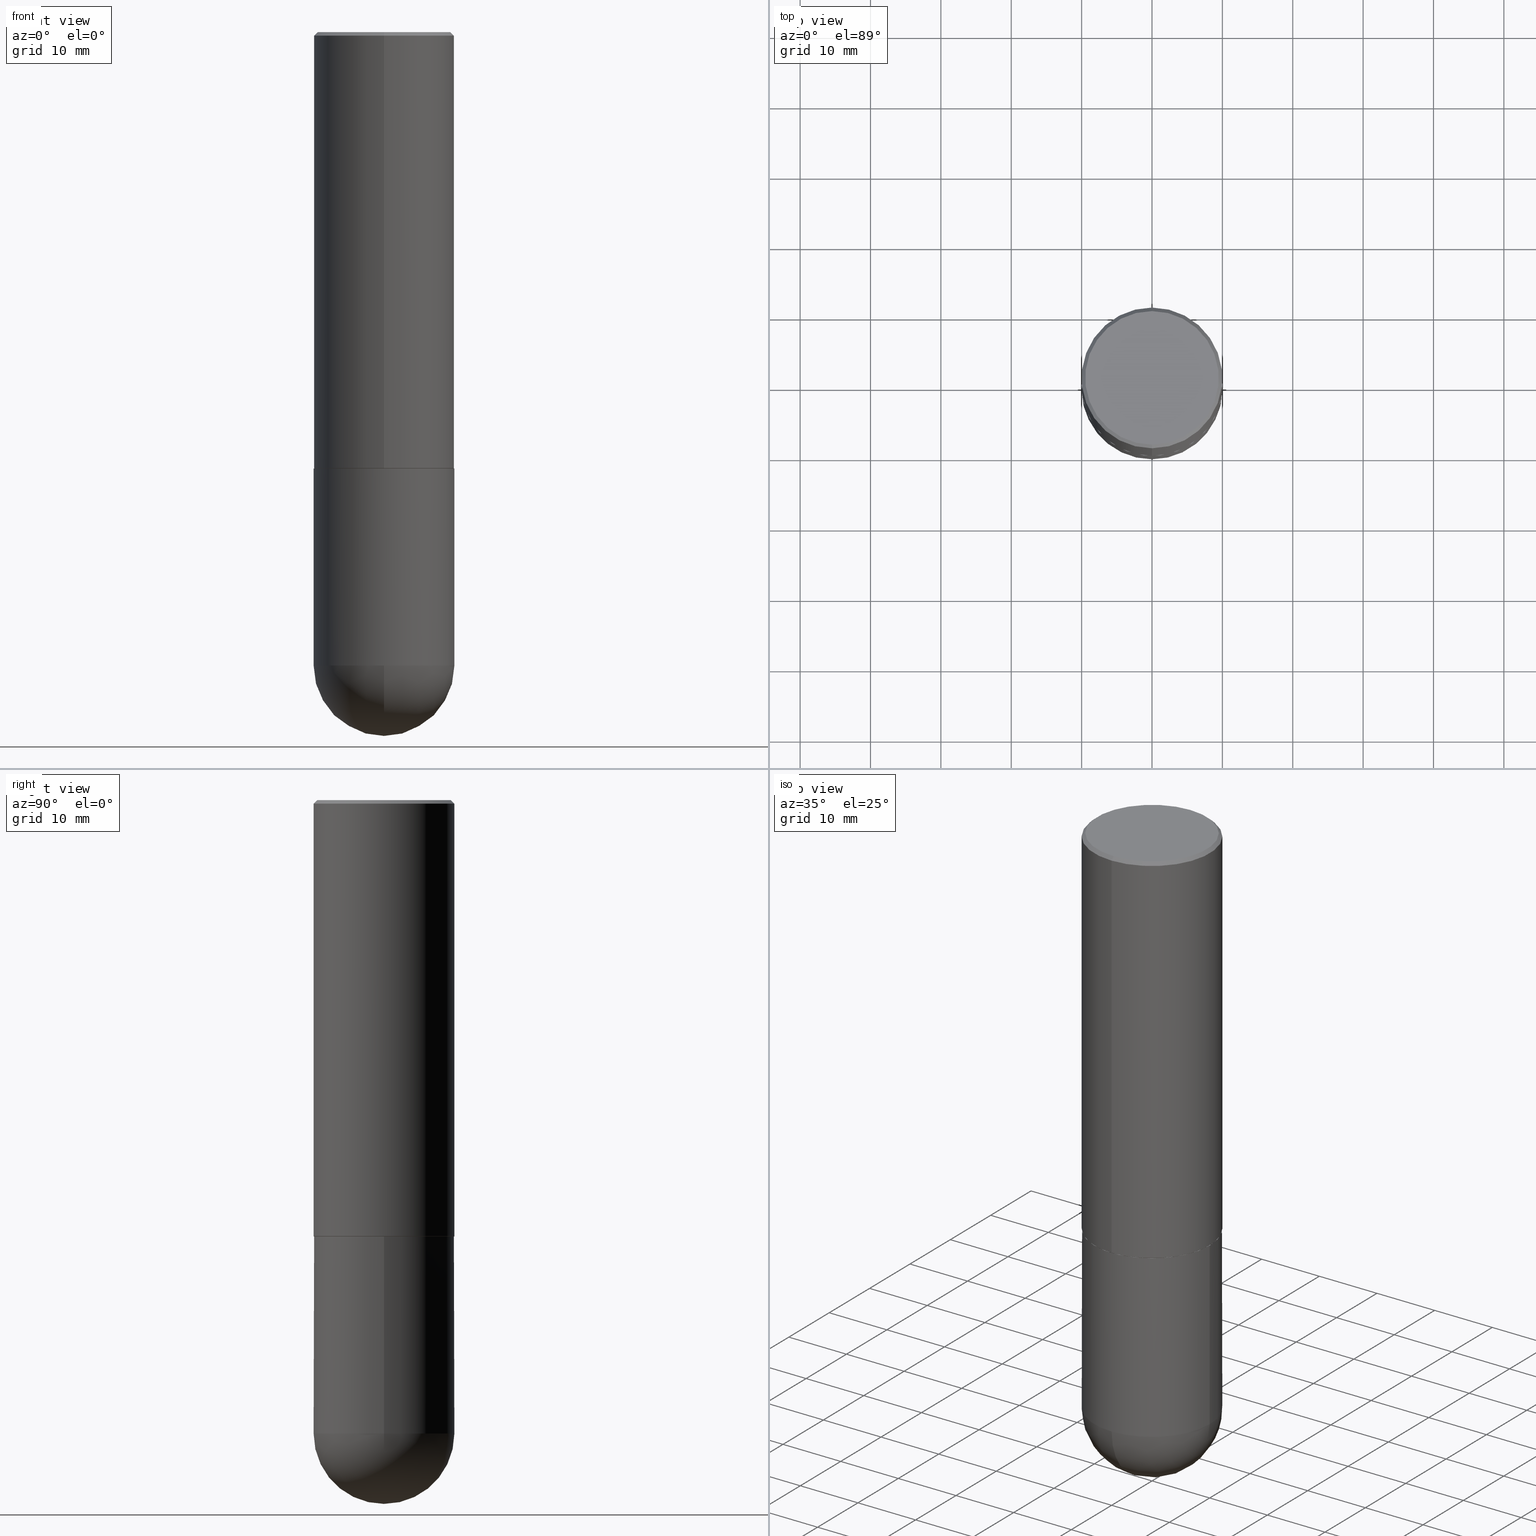
[diagram: canonical four-view strip — front | top / right | iso, engineering-drawing reading convention]
A machine part, canonical four-view strip (front | top / right | iso — engineering-drawing reading convention). The complete STEP part file that produces these views, byte-faithful:
ISO-10303-21;
HEADER;
FILE_DESCRIPTION (( 'STEP AP203' ),
    '1' );
FILE_NAME ('48882.STEP',
    '2024-04-10T12:09:17',
    ( '' ),
    ( '' ),
    'SwSTEP 2.0',
    'SolidWorks 2023',
    '' );
FILE_SCHEMA (( 'CONFIG_CONTROL_DESIGN' ));
ENDSEC;

DATA;
#1 = AXIS2_PLACEMENT_3D ( 'NONE', #129, #253, #74 ) ;
#2 = DIRECTION ( 'NONE',  ( -2.446584931093789145E-29, 3.489882984448070387E-15, 1.000000000000000000 ) ) ;
#3 = DIRECTION ( 'NONE',  ( -2.446584931093789145E-29, 3.489882984448070387E-15, 1.000000000000000000 ) ) ;
#4 = CARTESIAN_POINT ( 'NONE',  ( 5.971869158306830991E-29, -8.518455376739295534E-15, -2.440900000000000514 ) ) ;
#5 = CYLINDRICAL_SURFACE ( 'NONE', #1, 0.3937000000000001609 ) ;
#6 = FACE_OUTER_BOUND ( 'NONE', #104, .T. ) ;
#7 = VERTEX_POINT ( 'NONE', #138 ) ;
#8 = DIRECTION ( 'NONE',  ( 1.000000000000000000, -6.982962677686267499E-15, 0.000000000000000000 ) ) ;
#9 = ORIENTED_EDGE ( 'NONE', *, *, #123, .T. ) ;
#10 =( CONVERSION_BASED_UNIT ( 'INCH', #199 ) LENGTH_UNIT ( ) NAMED_UNIT ( #78 ) );
#11 = VECTOR ( 'NONE', #96, 39.37007874015748143 ) ;
#12 = DIRECTION ( 'NONE',  ( -2.446584931093789145E-29, 3.489882984448070387E-15, 1.000000000000000000 ) ) ;
#13 = ORIENTED_EDGE ( 'NONE', *, *, #152, .T. ) ;
#14 = APPROVAL ( #336, 'UNSPECIFIED' ) ;
#15 = EDGE_CURVE ( 'NONE', #232, #244, #320, .T. ) ;
#16 = FACE_OUTER_BOUND ( 'NONE', #266, .T. ) ;
#17 = PERSON_AND_ORGANIZATION ( #209, #183 ) ;
#18 = AXIS2_PLACEMENT_3D ( 'NONE', #195, #69, #173 ) ;
#19 = CALENDAR_DATE ( 2024, 10, 4 ) ;
#20 = ORIENTED_EDGE ( 'NONE', *, *, #269, .F. ) ;
#21 = EDGE_CURVE ( 'NONE', #47, #130, #242, .T. ) ;
#22 = AXIS2_PLACEMENT_3D ( 'NONE', #109, #197, #234 ) ;
#23 = LOCAL_TIME ( 8, 9, 17.00000000000000000, #265 ) ;
#24 = EDGE_LOOP ( 'NONE', ( #149, #228, #79, #395 ) ) ;
#25 = CARTESIAN_POINT ( 'NONE',  ( -0.3937000000000000499, -7.649454563265061811E-15, -2.440900000000000070 ) ) ;
#26 = CARTESIAN_POINT ( 'NONE',  ( -2.749192406205025235E-15, -0.3937000000000088207, -2.439899999999998847 ) ) ;
#27 = AXIS2_PLACEMENT_3D ( 'NONE', #91, #309, #313 ) ;
#28 = LINE ( 'NONE', #158, #412 ) ;
#29 = LOCAL_TIME ( 8, 9, 17.00000000000000000, #102 ) ;
#30 = EDGE_LOOP ( 'NONE', ( #288, #400 ) ) ;
#31 = DIRECTION ( 'NONE',  ( -2.446584931093789145E-29, 3.489882984448070387E-15, 1.000000000000000000 ) ) ;
#32 = LINE ( 'NONE', #375, #121 ) ;
#33 = DIRECTION ( 'NONE',  ( -2.446584931093789145E-29, 3.489882984448070387E-15, 1.000000000000000000 ) ) ;
#34 = DIRECTION ( 'NONE',  ( 6.982962677686265133E-15, 1.000000000000000000, 0.000000000000000000 ) ) ;
#35 = AXIS2_PLACEMENT_3D ( 'NONE', #245, #159, #273 ) ;
#36 = CARTESIAN_POINT ( 'NONE',  ( 4.893169862187600501E-31, -6.979765968896171984E-17, -0.02000000000000009062 ) ) ;
#37 = CARTESIAN_POINT ( 'NONE',  ( 2.790301323329972943E-15, 0.3926999999999915003, -2.440900000000001846 ) ) ;
#38 = ORIENTED_EDGE ( 'NONE', *, *, #370, .T. ) ;
#39 = PERSON_AND_ORGANIZATION_ROLE ( 'design_supplier' ) ;
#40 = DIRECTION ( 'NONE',  ( -2.446584931093789145E-29, 3.489882984448070387E-15, 1.000000000000000000 ) ) ;
#41 = CARTESIAN_POINT ( 'NONE',  ( 9.313524860439493426E-29, -1.419603722692429674E-14, -3.937000000000000277 ) ) ;
#42 = DIRECTION ( 'NONE',  ( -6.982962677686265133E-15, -1.000000000000000000, 3.478288761986584267E-15 ) ) ;
#43 = ADVANCED_FACE ( 'NONE', ( #394 ), #254, .T. ) ;
#44 = VERTEX_POINT ( 'NONE', #383 ) ;
#45 = ORIENTED_EDGE ( 'NONE', *, *, #111, .F. ) ;
#46 = FACE_OUTER_BOUND ( 'NONE', #257, .T. ) ;
#47 = VERTEX_POINT ( 'NONE', #41 ) ;
#48 = PERSON_AND_ORGANIZATION ( #209, #183 ) ;
#49 = EDGE_LOOP ( 'NONE', ( #329, #45, #13, #302 ) ) ;
#50 = CIRCLE ( 'NONE', #100, 0.3937000000000001054 ) ;
#51 = CARTESIAN_POINT ( 'NONE',  ( 5.969422573375736627E-29, -8.514965493754847370E-15, -2.439900000000000180 ) ) ;
#52 = VERTEX_POINT ( 'NONE', #169 ) ;
#53 = ORIENTED_EDGE ( 'NONE', *, *, #21, .F. ) ;
#54 = DIRECTION ( 'NONE',  ( -2.445468806185136597E-29, 3.491481338843145583E-15, 1.000000000000000000 ) ) ;
#55 = DIRECTION ( 'NONE',  ( 1.000000000000000000, -6.982962677686266711E-15, 0.000000000000000000 ) ) ;
#56 = CARTESIAN_POINT ( 'NONE',  ( -2.700978061722651252E-15, -0.3937000000000001054, -0.01999999999999871672 ) ) ;
#57 = AXIS2_PLACEMENT_3D ( 'NONE', #352, #97, #34 ) ;
#58 = EDGE_CURVE ( 'NONE', #52, #202, #316, .T. ) ;
#59 = CARTESIAN_POINT ( 'NONE',  ( 5.969144809017300159E-29, -8.522356799982234543E-15, -2.440900000000000070 ) ) ;
#60 = CARTESIAN_POINT ( 'NONE',  ( -2.700978061722651252E-15, -0.3937000000000001054, -0.01999999999999871672 ) ) ;
#61 = ADVANCED_FACE ( 'NONE', ( #163 ), #112, .T. ) ;
#62 = EDGE_CURVE ( 'NONE', #44, #52, #87, .T. ) ;
#63 = EDGE_LOOP ( 'NONE', ( #398, #340, #303, #175 ) ) ;
#64 = DIRECTION ( 'NONE',  ( -2.445468806185136597E-29, 3.491481338843145583E-15, 1.000000000000000000 ) ) ;
#65 = DIRECTION ( 'NONE',  ( 6.982962677686265133E-15, 1.000000000000000000, -3.491137977679279424E-15 ) ) ;
#66 = AXIS2_PLACEMENT_3D ( 'NONE', #51, #124, #218 ) ;
#67 = ORIENTED_EDGE ( 'NONE', *, *, #144, .F. ) ;
#68 = SHAPE_DEFINITION_REPRESENTATION ( #374, #410 ) ;
#69 = DIRECTION ( 'NONE',  ( -1.000000000000000000, 7.105427357601001070E-15, -4.926315508542082329E-29 ) ) ;
#70 = VERTEX_POINT ( 'NONE', #287 ) ;
#71 = ORIENTED_EDGE ( 'NONE', *, *, #356, .T. ) ;
#72 = DIRECTION ( 'NONE',  ( -2.446584931093789145E-29, 3.489882984448070387E-15, 1.000000000000000000 ) ) ;
#73 = UNCERTAINTY_MEASURE_WITH_UNIT (LENGTH_MEASURE( 1.000000000000000082E-05 ), #10, 'distance_accuracy_value', 'NONE');
#74 = DIRECTION ( 'NONE',  ( -6.982962677686265922E-15, -1.000000000000000000, 3.489882984448070387E-15 ) ) ;
#75 = AXIS2_PLACEMENT_3D ( 'NONE', #343, #3, #221 ) ;
#76 = PRODUCT ( '48882', '48882', '', ( #399 ) ) ;
#77 = CALENDAR_DATE ( 2024, 10, 4 ) ;
#78 = DIMENSIONAL_EXPONENTS ( 1.000000000000000000, 0.000000000000000000, 0.000000000000000000, 0.000000000000000000, 0.000000000000000000, 0.000000000000000000, 0.000000000000000000 ) ;
#79 = ORIENTED_EDGE ( 'NONE', *, *, #106, .F. ) ;
#80 = PERSON_AND_ORGANIZATION ( #209, #183 ) ;
#81 = PERSON_AND_ORGANIZATION_ROLE ( 'creator' ) ;
#82 = AXIS2_PLACEMENT_3D ( 'NONE', #141, #396, #42 ) ;
#83 = ADVANCED_FACE ( 'NONE', ( #328 ), #172, .T. ) ;
#84 = ADVANCED_FACE ( 'NONE', ( #6 ), #181, .T. ) ;
#85 = ORIENTED_EDGE ( 'NONE', *, *, #349, .F. ) ;
#86 = DIRECTION ( 'NONE',  ( -6.982962677686265133E-15, -1.000000000000000000, 3.491137977679279424E-15 ) ) ;
#87 = CIRCLE ( 'NONE', #82, 0.3926999999999999935 ) ;
#88 = DIRECTION ( 'NONE',  ( 6.982962677686265922E-15, 1.000000000000000000, -4.163344669033671690E-15 ) ) ;
#89 = CARTESIAN_POINT ( 'NONE',  ( 2.797406750687545552E-15, 0.3936999999999917788, -2.439900000000001512 ) ) ;
#90 = CC_DESIGN_PERSON_AND_ORGANIZATION_ASSIGNMENT ( #17, #331, ( #267 ) ) ;
#91 = CARTESIAN_POINT ( 'NONE',  ( 5.971869158306829870E-29, -8.518455376739295534E-15, -2.440900000000000070 ) ) ;
#92 = EDGE_LOOP ( 'NONE', ( #330, #180, #38, #368 ) ) ;
#93 = AXIS2_PLACEMENT_3D ( 'NONE', #231, #174, #65 ) ;
#94 = FACE_OUTER_BOUND ( 'NONE', #30, .T. ) ;
#95 = CIRCLE ( 'NONE', #243, 0.3736999999999997546 ) ;
#96 = DIRECTION ( 'NONE',  ( -2.445468806185136877E-29, 3.491481338843145188E-15, 1.000000000000000000 ) ) ;
#97 = DIRECTION ( 'NONE',  ( 1.000000000000000000, -6.982962677686265922E-15, 4.883557194083112340E-29 ) ) ;
#98 = EDGE_LOOP ( 'NONE', ( #201, #404 ) ) ;
#99 = DIRECTION ( 'NONE',  ( 2.446584931093789145E-29, -3.489882984448070387E-15, -1.000000000000000000 ) ) ;
#100 = AXIS2_PLACEMENT_3D ( 'NONE', #241, #280, #371 ) ;
#101 = APPROVAL_PERSON_ORGANIZATION ( #268, #105, #208 ) ;
#102 = COORDINATED_UNIVERSAL_TIME_OFFSET ( 5, 0, .BEHIND. ) ;
#103 = FACE_OUTER_BOUND ( 'NONE', #49, .T. ) ;
#104 = EDGE_LOOP ( 'NONE', ( #85, #214, #116, #317 ) ) ;
#105 = APPROVAL ( #115, 'UNSPECIFIED' ) ;
#106 = EDGE_CURVE ( 'NONE', #232, #202, #210, .T. ) ;
#107 = DIRECTION ( 'NONE',  ( -6.982962677686265133E-15, -1.000000000000000000, 3.478288761986584267E-15 ) ) ;
#108 = APPROVAL_DATE_TIME ( #365, #14 ) ;
#109 = CARTESIAN_POINT ( 'NONE',  ( 0.000000000000000000, 0.000000000000000000, 0.000000000000000000 ) ) ;
#110 = ORIENTED_EDGE ( 'NONE', *, *, #58, .F. ) ;
#111 = EDGE_CURVE ( 'NONE', #132, #402, #290, .T. ) ;
#112 = CONICAL_SURFACE ( 'NONE', #93, 0.3937000000000000499, 0.7853981633974476129 ) ;
#113 = LOCAL_TIME ( 8, 9, 17.00000000000000000, #299 ) ;
#114 = APPROVAL_ROLE ( '' ) ;
#115 = APPROVAL_STATUS ( 'not_yet_approved' ) ;
#116 = ORIENTED_EDGE ( 'NONE', *, *, #300, .F. ) ;
#117 = CIRCLE ( 'NONE', #369, 0.3937000000000000499 ) ;
#118 = EDGE_CURVE ( 'NONE', #70, #244, #117, .T. ) ;
#119 = APPLICATION_CONTEXT ( 'configuration controlled 3d designs of mechanical parts and assemblies' ) ;
#120 = DIRECTION ( 'NONE',  ( -4.937700262164378437E-15, -0.7071067811865208164, 0.7071067811865739960 ) ) ;
#121 = VECTOR ( 'NONE', #281, 39.37007874015748854 ) ;
#122 = PLANE ( 'NONE',  #347 ) ;
#123 = EDGE_CURVE ( 'NONE', #52, #44, #388, .T. ) ;
#124 = DIRECTION ( 'NONE',  ( -2.446584931093789145E-29, 3.489882984448070387E-15, 1.000000000000000000 ) ) ;
#125 = CARTESIAN_POINT ( 'NONE',  ( 4.893169862187600501E-31, -6.979765968896171984E-17, -0.02000000000000009062 ) ) ;
#126 = CIRCLE ( 'NONE', #35, 0.3937000000000001054 ) ;
#127 = DIRECTION ( 'NONE',  ( -2.445468806185136597E-29, 3.491481338843145583E-15, 1.000000000000000000 ) ) ;
#128 =( GEOMETRIC_REPRESENTATION_CONTEXT ( 3 ) GLOBAL_UNCERTAINTY_ASSIGNED_CONTEXT ( ( #73 ) ) GLOBAL_UNIT_ASSIGNED_CONTEXT ( ( #10, #261, #327 ) ) REPRESENTATION_CONTEXT ( 'NONE', 'WORKASPACE' ) );
#129 = CARTESIAN_POINT ( 'NONE',  ( 0.000000000000000000, 0.000000000000000000, 0.000000000000000000 ) ) ;
#130 = VERTEX_POINT ( 'NONE', #161 ) ;
#131 = CYLINDRICAL_SURFACE ( 'NONE', #156, 0.3937000000000001054 ) ;
#132 = VERTEX_POINT ( 'NONE', #274 ) ;
#133 = PERSON_AND_ORGANIZATION ( #209, #183 ) ;
#134 = LOCAL_TIME ( 8, 9, 17.00000000000000000, #207 ) ;
#135 = ORIENTED_EDGE ( 'NONE', *, *, #144, .T. ) ;
#136 = DATE_AND_TIME ( #222, #29 ) ;
#137 = FACE_OUTER_BOUND ( 'NONE', #24, .T. ) ;
#138 = CARTESIAN_POINT ( 'NONE',  ( 0.3937000000000000499, -1.127154920618731776E-14, -2.440900000000000070 ) ) ;
#139 = ORIENTED_EDGE ( 'NONE', *, *, #279, .F. ) ;
#140 = CYLINDRICAL_SURFACE ( 'NONE', #211, 0.3937000000000001054 ) ;
#141 = CARTESIAN_POINT ( 'NONE',  ( 5.971869158306830991E-29, -8.518455376739295534E-15, -2.440900000000000514 ) ) ;
#142 = MANIFOLD_SOLID_BREP ( 'Body-Move/Copy2[1]', #282 ) ;
#143 = CALENDAR_DATE ( 2024, 10, 4 ) ;
#144 = EDGE_CURVE ( 'NONE', #202, #232, #301, .T. ) ;
#145 = VECTOR ( 'NONE', #311, 39.37007874015748854 ) ;
#146 = CC_DESIGN_SECURITY_CLASSIFICATION ( #267, ( #406 ) ) ;
#147 = DATE_AND_TIME ( #19, #134 ) ;
#148 = MANIFOLD_SOLID_BREP ( 'Body-Move/Copy2[2]', #318 ) ;
#149 = ORIENTED_EDGE ( 'NONE', *, *, #62, .T. ) ;
#150 = EDGE_CURVE ( 'NONE', #333, #291, #126, .T. ) ;
#151 = AXIS2_PLACEMENT_3D ( 'NONE', #294, #362, #323 ) ;
#152 = EDGE_CURVE ( 'NONE', #132, #70, #32, .T. ) ;
#153 = CARTESIAN_POINT ( 'NONE',  ( 8.665029620955792948E-29, -1.237136582792291707E-14, -3.543299999999999450 ) ) ;
#154 = LINE ( 'NONE', #56, #145 ) ;
#155 = AXIS2_PLACEMENT_3D ( 'NONE', #217, #215, #186 ) ;
#156 = AXIS2_PLACEMENT_3D ( 'NONE', #382, #286, #319 ) ;
#157 = CIRCLE ( 'NONE', #220, 0.3937000000000000499 ) ;
#158 = CARTESIAN_POINT ( 'NONE',  ( -0.3937000000000001054, 2.797406750687515181E-15, -1.936584745033357016E-29 ) ) ;
#159 = DIRECTION ( 'NONE',  ( -2.445468806185136597E-29, 3.491481338843145583E-15, 1.000000000000000000 ) ) ;
#160 = ADVANCED_FACE ( 'NONE', ( #377 ), #411, .F. ) ;
#161 = CARTESIAN_POINT ( 'NONE',  ( 2.749192406205169202E-15, 0.3936999999999876709, -3.543300000000000782 ) ) ;
#162 = PLANE ( 'NONE',  #390 ) ;
#163 = FACE_OUTER_BOUND ( 'NONE', #92, .T. ) ;
#164 = ORIENTED_EDGE ( 'NONE', *, *, #191, .F. ) ;
#165 = FACE_OUTER_BOUND ( 'NONE', #353, .T. ) ;
#166 = ORIENTED_EDGE ( 'NONE', *, *, #279, .T. ) ;
#167 = ORIENTED_EDGE ( 'NONE', *, *, #334, .T. ) ;
#168 =( LENGTH_UNIT ( ) NAMED_UNIT ( * ) SI_UNIT ( $, .METRE. ) );
#169 = CARTESIAN_POINT ( 'NONE',  ( 2.793854037008774630E-15, 0.3926999999999915003, -2.440900000000001846 ) ) ;
#170 = FACE_OUTER_BOUND ( 'NONE', #240, .T. ) ;
#171 = CONICAL_SURFACE ( 'NONE', #355, 0.3926999999999999935, 0.7853981633974141952 ) ;
#172 = CYLINDRICAL_SURFACE ( 'NONE', #22, 0.3937000000000001609 ) ;
#173 = DIRECTION ( 'NONE',  ( -7.105427357600999492E-15, -1.000000000000000000, 0.000000000000000000 ) ) ;
#174 = DIRECTION ( 'NONE',  ( 2.446584931093789145E-29, -3.489882984448070387E-15, -1.000000000000000000 ) ) ;
#175 = ORIENTED_EDGE ( 'NONE', *, *, #15, .F. ) ;
#176 = CARTESIAN_POINT ( 'NONE',  ( 0.000000000000000000, 0.000000000000000000, 0.000000000000000000 ) ) ;
#177 = APPLICATION_PROTOCOL_DEFINITION ( 'international standard', 'config_control_design', 1994, #403 ) ;
#178 = ORIENTED_EDGE ( 'NONE', *, *, #272, .T. ) ;
#179 = AXIS2_PLACEMENT_3D ( 'NONE', #176, #335, #297 ) ;
#180 = ORIENTED_EDGE ( 'NONE', *, *, #247, .T. ) ;
#181 = SPHERICAL_SURFACE ( 'NONE', #249, 0.3937000000000003830 ) ;
#182 = ORIENTED_EDGE ( 'NONE', *, *, #272, .F. ) ;
#183 = ORGANIZATION ( 'UNSPECIFIED', 'UNSPECIFIED', '' ) ;
#184 = DIRECTION ( 'NONE',  ( 1.000000000000000000, -6.982962677686267499E-15, 0.000000000000000000 ) ) ;
#185 = CC_DESIGN_PERSON_AND_ORGANIZATION_ASSIGNMENT ( #133, #39, ( #406 ) ) ;
#186 = DIRECTION ( 'NONE',  ( -6.982962677686265922E-15, -1.000000000000000000, 3.469453890861393601E-15 ) ) ;
#187 = DIRECTION ( 'NONE',  ( 2.446584931093788865E-29, -3.489882984448070387E-15, -1.000000000000000000 ) ) ;
#188 = CIRCLE ( 'NONE', #194, 0.3937000000000000499 ) ;
#189 = LOCAL_TIME ( 8, 9, 17.00000000000000000, #325 ) ;
#190 = LINE ( 'NONE', #192, #239 ) ;
#191 = EDGE_CURVE ( 'NONE', #130, #275, #342, .T. ) ;
#192 = CARTESIAN_POINT ( 'NONE',  ( 2.797406750687515181E-15, 0.3937000000000001609, -1.373966930977205864E-15 ) ) ;
#193 = CARTESIAN_POINT ( 'NONE',  ( 4.893169862187600501E-31, -6.979765968896171984E-17, -0.02000000000000009062 ) ) ;
#194 = AXIS2_PLACEMENT_3D ( 'NONE', #59, #409, #184 ) ;
#195 = CARTESIAN_POINT ( 'NONE',  ( 8.333909843041907822E-29, -1.284554819606296579E-14, -3.543299999999999894 ) ) ;
#196 = CIRCLE ( 'NONE', #250, 0.3937000000000000499 ) ;
#197 = DIRECTION ( 'NONE',  ( -2.446584931093789145E-29, 3.489882984448070387E-15, 1.000000000000000000 ) ) ;
#198 = ORIENTED_EDGE ( 'NONE', *, *, #349, .T. ) ;
#199 = LENGTH_MEASURE_WITH_UNIT ( LENGTH_MEASURE( 0.02539999999999999897 ), #168 );
#200 = DATE_AND_TIME ( #143, #189 ) ;
#201 = ORIENTED_EDGE ( 'NONE', *, *, #62, .F. ) ;
#202 = VERTEX_POINT ( 'NONE', #89 ) ;
#203 = ADVANCED_FACE ( 'NONE', ( #94 ), #122, .F. ) ;
#204 = DIRECTION ( 'NONE',  ( -6.982962677686265133E-15, -1.000000000000000000, 3.478288761986584267E-15 ) ) ;
#205 = SECURITY_CLASSIFICATION_LEVEL ( 'unclassified' ) ;
#206 = DATE_AND_TIME ( #77, #23 ) ;
#207 = COORDINATED_UNIVERSAL_TIME_OFFSET ( 5, 0, .BEHIND. ) ;
#208 = APPROVAL_ROLE ( '' ) ;
#209 = PERSON ( 'UNSPECIFIED', 'UNSPECIFIED', 'UNSPECIFIED', ('UNSPECIFIED'), ('UNSPECIFIED'), ('UNSPECIFIED') ) ;
#210 = CIRCLE ( 'NONE', #66, 0.3937000000000002720 ) ;
#211 = AXIS2_PLACEMENT_3D ( 'NONE', #351, #64, #381 ) ;
#212 = PRODUCT_RELATED_PRODUCT_CATEGORY ( 'detail', '', ( #76 ) ) ;
#213 = ORIENTED_EDGE ( 'NONE', *, *, #356, .F. ) ;
#214 = ORIENTED_EDGE ( 'NONE', *, *, #21, .T. ) ;
#215 = DIRECTION ( 'NONE',  ( -2.446584931093789145E-29, 3.489882984448070387E-15, 1.000000000000000000 ) ) ;
#216 = AXIS2_PLACEMENT_3D ( 'NONE', #4, #345, #246 ) ;
#217 = CARTESIAN_POINT ( 'NONE',  ( 5.969422573375736627E-29, -8.514965493754847370E-15, -2.439900000000000180 ) ) ;
#218 = DIRECTION ( 'NONE',  ( -6.982962677686265922E-15, -1.000000000000000000, 3.469453890861393601E-15 ) ) ;
#219 = DIRECTION ( 'NONE',  ( 1.000000000000000000, -6.982962677686266711E-15, 0.000000000000000000 ) ) ;
#220 = AXIS2_PLACEMENT_3D ( 'NONE', #193, #33, #315 ) ;
#221 = DIRECTION ( 'NONE',  ( -6.982962677686265922E-15, -1.000000000000000000, 3.489882984448069993E-15 ) ) ;
#222 = CALENDAR_DATE ( 2024, 10, 4 ) ;
#223 = DIRECTION ( 'NONE',  ( -1.000000000000000000, 6.982962677686265922E-15, -4.876176775795935793E-29 ) ) ;
#224 = APPROVAL_STATUS ( 'not_yet_approved' ) ;
#225 = VECTOR ( 'NONE', #120, 39.37007874015748854 ) ;
#226 = FACE_OUTER_BOUND ( 'NONE', #321, .T. ) ;
#227 = CARTESIAN_POINT ( 'NONE',  ( -2.749192406205084005E-15, -0.3937000000000001609, 1.373966930977205864E-15 ) ) ;
#228 = ORIENTED_EDGE ( 'NONE', *, *, #58, .T. ) ;
#229 = APPROVAL_DATE_TIME ( #136, #278 ) ;
#230 = DIRECTION ( 'NONE',  ( 2.438088387897960049E-29, -3.491481338843145188E-15, -1.000000000000000000 ) ) ;
#231 = CARTESIAN_POINT ( 'NONE',  ( 4.893169862187600501E-31, -6.979765968896171984E-17, -0.02000000000000009062 ) ) ;
#232 = VERTEX_POINT ( 'NONE', #26 ) ;
#233 = APPLICATION_PROTOCOL_DEFINITION ( 'international standard', 'config_control_design', 1994, #119 ) ;
#234 = DIRECTION ( 'NONE',  ( -6.982962677686265922E-15, -1.000000000000000000, 3.489882984448070387E-15 ) ) ;
#235 = CONICAL_SURFACE ( 'NONE', #363, 0.3926999999999999935, 0.7853981633974141952 ) ;
#236 = ORIENTED_EDGE ( 'NONE', *, *, #305, .F. ) ;
#237 = PERSON_AND_ORGANIZATION ( #209, #183 ) ;
#238 = CC_DESIGN_DATE_AND_TIME_ASSIGNMENT ( #147, #401, ( #252 ) ) ;
#239 = VECTOR ( 'NONE', #31, 39.37007874015748143 ) ;
#240 = EDGE_LOOP ( 'NONE', ( #139, #307, #392, #167, #182 ) ) ;
#241 = CARTESIAN_POINT ( 'NONE',  ( 8.665029620955792948E-29, -1.237136582792291707E-14, -3.543299999999999450 ) ) ;
#242 = CIRCLE ( 'NONE', #57, 0.3937000000000003830 ) ;
#243 = AXIS2_PLACEMENT_3D ( 'NONE', #255, #40, #322 ) ;
#244 = VERTEX_POINT ( 'NONE', #60 ) ;
#245 = CARTESIAN_POINT ( 'NONE',  ( 8.665029620955792948E-29, -1.237136582792291707E-14, -3.543299999999999450 ) ) ;
#246 = DIRECTION ( 'NONE',  ( -6.982962677686265133E-15, -1.000000000000000000, 3.478288761986584267E-15 ) ) ;
#247 = EDGE_CURVE ( 'NONE', #402, #244, #154, .T. ) ;
#248 = CARTESIAN_POINT ( 'NONE',  ( -0.3937000000000001054, -7.649454563265064966E-15, -3.543299999999999450 ) ) ;
#249 = AXIS2_PLACEMENT_3D ( 'NONE', #304, #341, #88 ) ;
#250 = AXIS2_PLACEMENT_3D ( 'NONE', #350, #289, #8 ) ;
#251 = DIRECTION ( 'NONE',  ( 6.982962677686265922E-15, 1.000000000000000000, -3.489882984448070387E-15 ) ) ;
#252 = PRODUCT_DEFINITION ( 'UNKNOWN', '', #406, #296 ) ;
#253 = DIRECTION ( 'NONE',  ( -2.446584931093789145E-29, 3.489882984448070387E-15, 1.000000000000000000 ) ) ;
#254 = SPHERICAL_SURFACE ( 'NONE', #151, 0.3937000000000003830 ) ;
#255 = CARTESIAN_POINT ( 'NONE',  ( -4.998160026464678782E-45, 7.129527125023776096E-31, 2.042912944873800903E-16 ) ) ;
#256 = DIRECTION ( 'NONE',  ( -2.446584931093789145E-29, 3.489882984448070387E-15, 1.000000000000000000 ) ) ;
#257 = EDGE_LOOP ( 'NONE', ( #71, #178 ) ) ;
#258 = APPROVAL_DATE_TIME ( #206, #105 ) ;
#259 = CIRCLE ( 'NONE', #18, 0.3937000000000003830 ) ;
#260 = CC_DESIGN_APPROVAL ( #278, ( #267 ) ) ;
#261 =( NAMED_UNIT ( * ) PLANE_ANGLE_UNIT ( ) SI_UNIT ( $, .RADIAN. ) );
#262 = VERTEX_POINT ( 'NONE', #25 ) ;
#263 = CARTESIAN_POINT ( 'NONE',  ( 5.971869158306830991E-29, -8.518455376739295534E-15, -2.440900000000000514 ) ) ;
#264 = DATE_TIME_ROLE ( 'classification_date' ) ;
#265 = COORDINATED_UNIVERSAL_TIME_OFFSET ( 5, 0, .BEHIND. ) ;
#266 = EDGE_LOOP ( 'NONE', ( #236, #135, #366, #295 ) ) ;
#267 = SECURITY_CLASSIFICATION ( '', '', #205 ) ;
#268 = PERSON_AND_ORGANIZATION ( #209, #183 ) ;
#269 = EDGE_CURVE ( 'NONE', #275, #333, #372, .T. ) ;
#270 = VECTOR ( 'NONE', #256, 39.37007874015748143 ) ;
#271 = AXIS2_PLACEMENT_3D ( 'NONE', #36, #99, #361 ) ;
#272 = EDGE_CURVE ( 'NONE', #262, #7, #188, .T. ) ;
#273 = DIRECTION ( 'NONE',  ( 1.000000000000000000, -6.982962677686266711E-15, 0.000000000000000000 ) ) ;
#274 = CARTESIAN_POINT ( 'NONE',  ( 2.679362779428219524E-15, 0.3736999999999997546, -1.099877976800862957E-15 ) ) ;
#275 = VERTEX_POINT ( 'NONE', #248 ) ;
#276 = CC_DESIGN_APPROVAL ( #14, ( #252 ) ) ;
#277 = CARTESIAN_POINT ( 'NONE',  ( 0.3937000000000001054, -1.319605372015766376E-14, -3.543299999999999450 ) ) ;
#278 = APPROVAL ( #224, 'UNSPECIFIED' ) ;
#279 = EDGE_CURVE ( 'NONE', #275, #262, #28, .T. ) ;
#280 = DIRECTION ( 'NONE',  ( -2.445468806185136597E-29, 3.491481338843145583E-15, 1.000000000000000000 ) ) ;
#281 = DIRECTION ( 'NONE',  ( 4.937700262164543309E-15, 0.7071067811865444641, -0.7071067811865503483 ) ) ;
#282 = CLOSED_SHELL ( 'NONE', ( #407, #43, #84, #387, #326 ) ) ;
#283 = CARTESIAN_POINT ( 'NONE',  ( -2.632373081744935132E-15, -0.3736999999999997546, 1.508460565775622989E-15 ) ) ;
#284 = DIRECTION ( 'NONE',  ( 5.024295867787889629E-15, 0.7071067811865257013, 0.7071067811865691111 ) ) ;
#285 = ORIENTED_EDGE ( 'NONE', *, *, #300, .T. ) ;
#286 = DIRECTION ( 'NONE',  ( -2.445468806185136597E-29, 3.491481338843145583E-15, 1.000000000000000000 ) ) ;
#287 = CARTESIAN_POINT ( 'NONE',  ( 2.749192406205083217E-15, 0.3936999999999999389, -0.02000000000000146452 ) ) ;
#288 = ORIENTED_EDGE ( 'NONE', *, *, #111, .T. ) ;
#289 = DIRECTION ( 'NONE',  ( -2.445468806185136597E-29, 3.491481338843145583E-15, 1.000000000000000000 ) ) ;
#290 = CIRCLE ( 'NONE', #75, 0.3736999999999997546 ) ;
#291 = VERTEX_POINT ( 'NONE', #277 ) ;
#292 = EDGE_CURVE ( 'NONE', #44, #232, #346, .T. ) ;
#293 = CARTESIAN_POINT ( 'NONE',  ( 2.749192406205142776E-15, 0.3936999999999915012, -2.440900000000001402 ) ) ;
#294 = CARTESIAN_POINT ( 'NONE',  ( 8.333909843041907822E-29, -1.284554819606296579E-14, -3.543299999999999894 ) ) ;
#295 = ORIENTED_EDGE ( 'NONE', *, *, #118, .F. ) ;
#296 = DESIGN_CONTEXT ( 'detailed design', #403, 'design' ) ;
#297 = DIRECTION ( 'NONE',  ( 1.000000000000000000, 0.000000000000000000, 0.000000000000000000 ) ) ;
#298 = CC_DESIGN_DATE_AND_TIME_ASSIGNMENT ( #200, #264, ( #267 ) ) ;
#299 = COORDINATED_UNIVERSAL_TIME_OFFSET ( 5, 0, .BEHIND. ) ;
#300 = EDGE_CURVE ( 'NONE', #291, #130, #50, .T. ) ;
#301 = CIRCLE ( 'NONE', #155, 0.3937000000000002720 ) ;
#302 = ORIENTED_EDGE ( 'NONE', *, *, #118, .T. ) ;
#303 = ORIENTED_EDGE ( 'NONE', *, *, #370, .F. ) ;
#304 = CARTESIAN_POINT ( 'NONE',  ( 8.333909843041907822E-29, -1.284554819606296579E-14, -3.543299999999999894 ) ) ;
#305 = EDGE_CURVE ( 'NONE', #202, #70, #190, .T. ) ;
#306 = APPROVAL_PERSON_ORGANIZATION ( #338, #14, #114 ) ;
#307 = ORIENTED_EDGE ( 'NONE', *, *, #269, .T. ) ;
#308 = CARTESIAN_POINT ( 'NONE',  ( -2.742209443527336854E-15, -0.3927000000000085422, -2.440899999999999181 ) ) ;
#309 = DIRECTION ( 'NONE',  ( -2.446584931093788865E-29, 3.489882984448070387E-15, 1.000000000000000000 ) ) ;
#310 = CC_DESIGN_PERSON_AND_ORGANIZATION_ASSIGNMENT ( #237, #364, ( #76 ) ) ;
#311 = DIRECTION ( 'NONE',  ( -4.851104656540959542E-15, -0.7071067811865493491, -0.7071067811865454633 ) ) ;
#312 = APPROVAL_PERSON_ORGANIZATION ( #48, #278, #357 ) ;
#313 = DIRECTION ( 'NONE',  ( -6.982962677686265922E-15, -1.000000000000000000, 3.489882984448070387E-15 ) ) ;
#314 = DIRECTION ( 'NONE',  ( -2.445468806185136877E-29, 3.491481338843145188E-15, 1.000000000000000000 ) ) ;
#315 = DIRECTION ( 'NONE',  ( -6.982962677686265133E-15, -1.000000000000000000, 3.491137977679279424E-15 ) ) ;
#316 = LINE ( 'NONE', #37, #386 ) ;
#317 = ORIENTED_EDGE ( 'NONE', *, *, #150, .F. ) ;
#318 = CLOSED_SHELL ( 'NONE', ( #378, #83, #61, #376, #405, #344, #160, #203 ) ) ;
#319 = DIRECTION ( 'NONE',  ( 1.000000000000000000, -6.982962677686266711E-15, 4.876176775795935793E-29 ) ) ;
#320 = LINE ( 'NONE', #227, #270 ) ;
#321 = EDGE_LOOP ( 'NONE', ( #397, #166, #213, #385, #285 ) ) ;
#322 = DIRECTION ( 'NONE',  ( -6.982962677686265922E-15, -1.000000000000000000, 3.489882984448069993E-15 ) ) ;
#323 = DIRECTION ( 'NONE',  ( 6.982962677686265922E-15, 1.000000000000000000, -4.163344669033671690E-15 ) ) ;
#324 = EDGE_LOOP ( 'NONE', ( #53, #198, #20, #164 ) ) ;
#325 = COORDINATED_UNIVERSAL_TIME_OFFSET ( 5, 0, .BEHIND. ) ;
#326 = ADVANCED_FACE ( 'NONE', ( #170 ), #131, .T. ) ;
#327 =( NAMED_UNIT ( * ) SI_UNIT ( $, .STERADIAN. ) SOLID_ANGLE_UNIT ( ) );
#328 = FACE_OUTER_BOUND ( 'NONE', #63, .T. ) ;
#329 = ORIENTED_EDGE ( 'NONE', *, *, #247, .F. ) ;
#330 = ORIENTED_EDGE ( 'NONE', *, *, #358, .F. ) ;
#331 = PERSON_AND_ORGANIZATION_ROLE ( 'classification_officer' ) ;
#332 = AXIS2_PLACEMENT_3D ( 'NONE', #379, #127, #55 ) ;
#333 = VERTEX_POINT ( 'NONE', #384 ) ;
#334 = EDGE_CURVE ( 'NONE', #291, #7, #391, .T. ) ;
#335 = DIRECTION ( 'NONE',  ( 0.000000000000000000, 0.000000000000000000, 1.000000000000000000 ) ) ;
#336 = APPROVAL_STATUS ( 'not_yet_approved' ) ;
#337 = ORIENTED_EDGE ( 'NONE', *, *, #292, .T. ) ;
#338 = PERSON_AND_ORGANIZATION ( #209, #183 ) ;
#339 = CC_DESIGN_APPROVAL ( #105, ( #406 ) ) ;
#340 = ORIENTED_EDGE ( 'NONE', *, *, #305, .T. ) ;
#341 = DIRECTION ( 'NONE',  ( -1.000000000000000000, 6.982962677686265922E-15, -4.883557194083112340E-29 ) ) ;
#342 = CIRCLE ( 'NONE', #332, 0.3937000000000001054 ) ;
#343 = CARTESIAN_POINT ( 'NONE',  ( -4.998160026464678782E-45, 7.129527125023776096E-31, 2.042912944873800903E-16 ) ) ;
#344 = ADVANCED_FACE ( 'NONE', ( #165 ), #171, .T. ) ;
#345 = DIRECTION ( 'NONE',  ( -2.446584931093789145E-29, 3.489882984448070387E-15, 1.000000000000000000 ) ) ;
#346 = LINE ( 'NONE', #308, #225 ) ;
#347 = AXIS2_PLACEMENT_3D ( 'NONE', #348, #187, #251 ) ;
#348 = CARTESIAN_POINT ( 'NONE',  ( 2.609533152651355831E-15, 0.3736999999999997546, -1.202023624044553064E-15 ) ) ;
#349 = EDGE_CURVE ( 'NONE', #47, #333, #259, .T. ) ;
#350 = CARTESIAN_POINT ( 'NONE',  ( 5.969144809017300159E-29, -8.522356799982234543E-15, -2.440900000000000070 ) ) ;
#351 = CARTESIAN_POINT ( 'NONE',  ( 0.000000000000000000, 0.000000000000000000, 0.000000000000000000 ) ) ;
#352 = CARTESIAN_POINT ( 'NONE',  ( 8.333909843041907822E-29, -1.284554819606296579E-14, -3.543299999999999894 ) ) ;
#353 = EDGE_LOOP ( 'NONE', ( #110, #9, #337, #67 ) ) ;
#354 = AXIS2_PLACEMENT_3D ( 'NONE', #153, #54, #219 ) ;
#355 = AXIS2_PLACEMENT_3D ( 'NONE', #393, #72, #204 ) ;
#356 = EDGE_CURVE ( 'NONE', #7, #262, #196, .T. ) ;
#357 = APPROVAL_ROLE ( '' ) ;
#358 = EDGE_CURVE ( 'NONE', #402, #132, #95, .T. ) ;
#359 = CARTESIAN_POINT ( 'NONE',  ( 0.3937000000000001054, -2.749192406205084005E-15, 1.919750796630860452E-29 ) ) ;
#360 = PERSON_AND_ORGANIZATION_ROLE ( 'creator' ) ;
#361 = DIRECTION ( 'NONE',  ( 6.982962677686265133E-15, 1.000000000000000000, -3.491137977679279424E-15 ) ) ;
#362 = DIRECTION ( 'NONE',  ( -1.000000000000000000, 6.982962677686265922E-15, -4.883557194083112340E-29 ) ) ;
#363 = AXIS2_PLACEMENT_3D ( 'NONE', #263, #12, #107 ) ;
#364 = PERSON_AND_ORGANIZATION_ROLE ( 'design_owner' ) ;
#365 = DATE_AND_TIME ( #367, #113 ) ;
#366 = ORIENTED_EDGE ( 'NONE', *, *, #15, .T. ) ;
#367 = CALENDAR_DATE ( 2024, 10, 4 ) ;
#368 = ORIENTED_EDGE ( 'NONE', *, *, #152, .F. ) ;
#369 = AXIS2_PLACEMENT_3D ( 'NONE', #125, #2, #86 ) ;
#370 = EDGE_CURVE ( 'NONE', #244, #70, #157, .T. ) ;
#371 = DIRECTION ( 'NONE',  ( 1.000000000000000000, -6.982962677686266711E-15, 0.000000000000000000 ) ) ;
#372 = CIRCLE ( 'NONE', #354, 0.3937000000000001054 ) ;
#373 = CC_DESIGN_PERSON_AND_ORGANIZATION_ASSIGNMENT ( #389, #360, ( #406 ) ) ;
#374 = PRODUCT_DEFINITION_SHAPE ( 'NONE', 'NONE',  #252 ) ;
#375 = CARTESIAN_POINT ( 'NONE',  ( 2.749192406205083217E-15, 0.3936999999999999389, -0.02000000000000146452 ) ) ;
#376 = ADVANCED_FACE ( 'NONE', ( #103 ), #380, .T. ) ;
#377 = FACE_OUTER_BOUND ( 'NONE', #98, .T. ) ;
#378 = ADVANCED_FACE ( 'NONE', ( #137 ), #235, .T. ) ;
#379 = CARTESIAN_POINT ( 'NONE',  ( 8.665029620955792948E-29, -1.237136582792291707E-14, -3.543299999999999450 ) ) ;
#380 = CONICAL_SURFACE ( 'NONE', #271, 0.3937000000000000499, 0.7853981633974476129 ) ;
#381 = DIRECTION ( 'NONE',  ( 1.000000000000000000, -6.982962677686266711E-15, 4.876176775795935793E-29 ) ) ;
#382 = CARTESIAN_POINT ( 'NONE',  ( 0.000000000000000000, 0.000000000000000000, 0.000000000000000000 ) ) ;
#383 = CARTESIAN_POINT ( 'NONE',  ( -2.742209443527336854E-15, -0.3927000000000085422, -2.440899999999999181 ) ) ;
#384 = CARTESIAN_POINT ( 'NONE',  ( -2.797406750687430773E-15, -0.3937000000000128175, -3.543299999999997674 ) ) ;
#385 = ORIENTED_EDGE ( 'NONE', *, *, #334, .F. ) ;
#386 = VECTOR ( 'NONE', #284, 39.37007874015748854 ) ;
#387 = ADVANCED_FACE ( 'NONE', ( #46 ), #162, .F. ) ;
#388 = CIRCLE ( 'NONE', #216, 0.3926999999999999935 ) ;
#389 = PERSON_AND_ORGANIZATION ( #209, #183 ) ;
#390 = AXIS2_PLACEMENT_3D ( 'NONE', #293, #230, #223 ) ;
#391 = LINE ( 'NONE', #359, #11 ) ;
#392 = ORIENTED_EDGE ( 'NONE', *, *, #150, .T. ) ;
#393 = CARTESIAN_POINT ( 'NONE',  ( 5.971869158306830991E-29, -8.518455376739295534E-15, -2.440900000000000514 ) ) ;
#394 = FACE_OUTER_BOUND ( 'NONE', #324, .T. ) ;
#395 = ORIENTED_EDGE ( 'NONE', *, *, #292, .F. ) ;
#396 = DIRECTION ( 'NONE',  ( -2.446584931093789145E-29, 3.489882984448070387E-15, 1.000000000000000000 ) ) ;
#397 = ORIENTED_EDGE ( 'NONE', *, *, #191, .T. ) ;
#398 = ORIENTED_EDGE ( 'NONE', *, *, #106, .T. ) ;
#399 = MECHANICAL_CONTEXT ( 'NONE', #119, 'mechanical' ) ;
#400 = ORIENTED_EDGE ( 'NONE', *, *, #358, .T. ) ;
#401 = DATE_TIME_ROLE ( 'creation_date' ) ;
#402 = VERTEX_POINT ( 'NONE', #283 ) ;
#403 = APPLICATION_CONTEXT ( 'configuration controlled 3d designs of mechanical parts and assemblies' ) ;
#404 = ORIENTED_EDGE ( 'NONE', *, *, #123, .F. ) ;
#405 = ADVANCED_FACE ( 'NONE', ( #16 ), #5, .T. ) ;
#406 = PRODUCT_DEFINITION_FORMATION_WITH_SPECIFIED_SOURCE ( 'ANY', '', #76, .NOT_KNOWN. ) ;
#407 = ADVANCED_FACE ( 'NONE', ( #226 ), #140, .T. ) ;
#408 = CC_DESIGN_PERSON_AND_ORGANIZATION_ASSIGNMENT ( #80, #81, ( #252 ) ) ;
#409 = DIRECTION ( 'NONE',  ( -2.445468806185136597E-29, 3.491481338843145583E-15, 1.000000000000000000 ) ) ;
#410 = ADVANCED_BREP_SHAPE_REPRESENTATION ( '48882', ( #142, #148, #179 ), #128 ) ;
#411 = PLANE ( 'NONE',  #27 ) ;
#412 = VECTOR ( 'NONE', #314, 39.37007874015748143 ) ;
ENDSEC;
END-ISO-10303-21;
